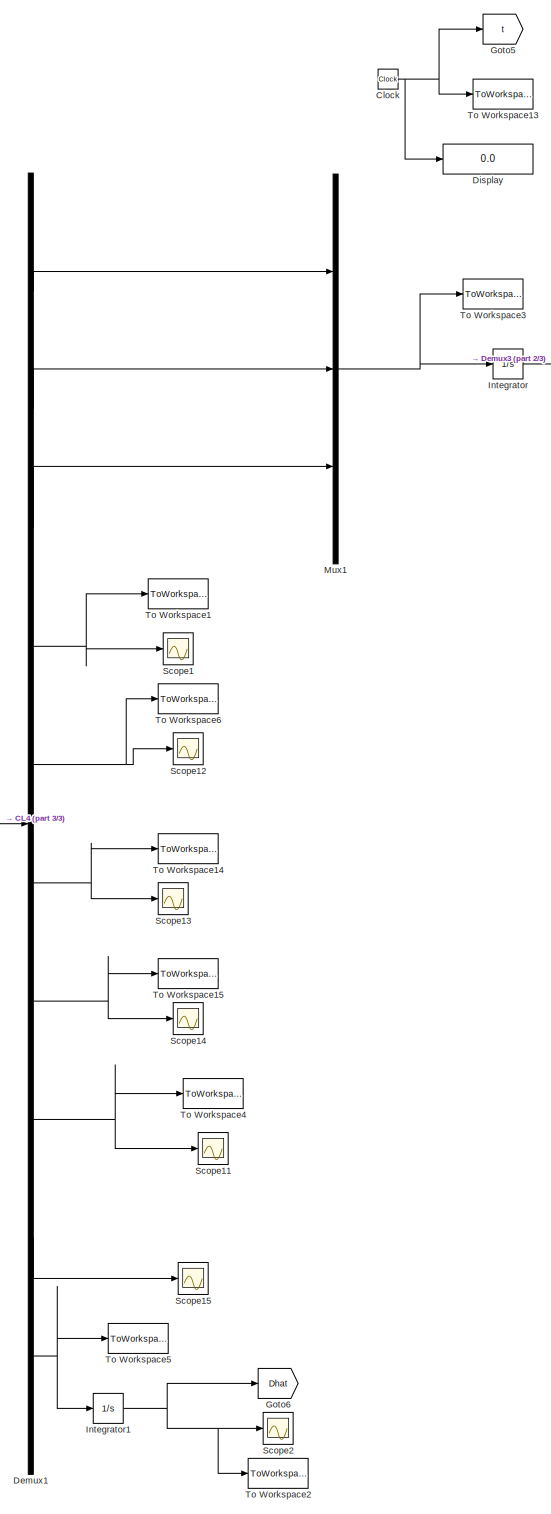
[diagram: root canvas - part 1/3, center side, full height]
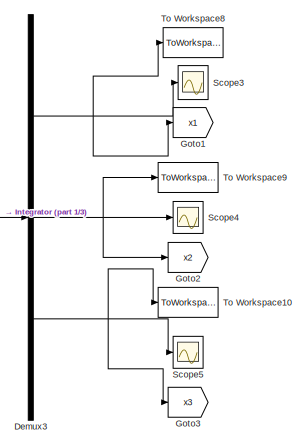
[diagram: root canvas - part 2/3, top right region]
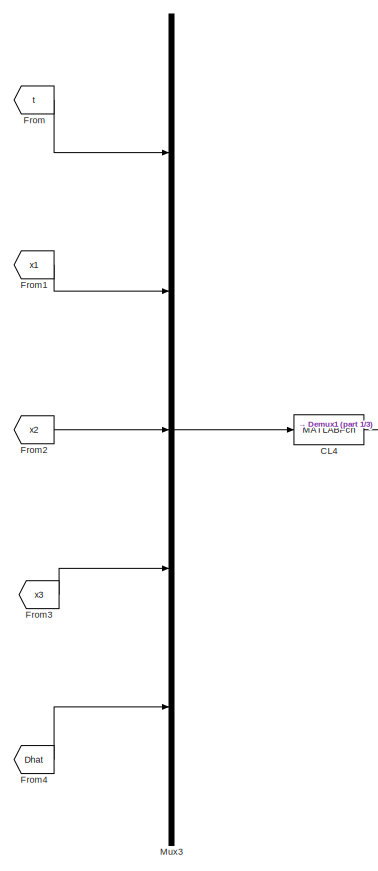
[diagram: root canvas - part 3/3, middle left region]
MODEL slx_58ae2312b29e
KIND model
CONFIG AbsTol = auto
CONFIG EnableMultiTasking = off
CONFIG FixedStep = auto
CONFIG MaxStep = auto
CONFIG MinStep = auto
CONFIG RelTol = 1e-3
CONFIG SampleTimeConstraint = Unconstrained
CONFIG SolverName = VariableStepAuto
CONFIG StartTime = 0.0
CONFIG StopTime = 90000
BLOCK [MATLABFcn] CL4
  MATLABFcn = control_law4adaptive
  OutputDimensions = 10
  Ports = [1, 1]
BLOCK [Clock] Clock
BLOCK [Demux] Demux1
  Outputs = 10
  Ports = [1, 10]
BLOCK [Demux] Demux3
  Outputs = 3
  Ports = [1, 3]
BLOCK [Display] Display
  Decimation = 1
  Ports = [1]
BLOCK [From] From
  GotoTag = t
  TagVisibility = global
BLOCK [From] From1
  GotoTag = x1
  TagVisibility = global
BLOCK [From] From2
  GotoTag = x2
  TagVisibility = global
BLOCK [From] From3
  GotoTag = x3
  TagVisibility = global
BLOCK [From] From4
  GotoTag = Dhat
  TagVisibility = global
BLOCK [Goto] Goto1
  GotoTag = x1
  TagVisibility = global
BLOCK [Goto] Goto2
  GotoTag = x2
  TagVisibility = global
BLOCK [Goto] Goto3
  GotoTag = x3
  TagVisibility = global
BLOCK [Goto] Goto5
  GotoTag = t
  TagVisibility = global
BLOCK [Goto] Goto6
  GotoTag = Dhat
  TagVisibility = global
BLOCK [Integrator] Integrator
  InitialCondition = [150;0;100]
  Ports = [1, 1]
BLOCK [Integrator] Integrator1
  Ports = [1, 1]
BLOCK [Mux] Mux1
  DisplayOption = bar
  Inputs = 3
  Ports = [3, 1]
BLOCK [Mux] Mux3
  DisplayOption = bar
  Inputs = 5
  Ports = [5, 1]
BLOCK [Scope] Scope1
  Floating = off
  NumInputPorts = 1
  Ports = [1]
  ScopeSpecificationString = Simulink.scopes.TimeScopeBlockCfg('CurrentConfiguration', extmgr.ConfigurationSet(extmgr.Configuration('Core','General UI',true),extmgr.Configuration('Core','Source UI',true),extmgr.Configuration('Sources','WiredSimulink',true,'DataLoggingVariableName','ScopeData1','DataLoggingSaveFormat','StructureWithTime','DataLoggingLimitDataPoints',true,'DataLoggingDecimation','1','DataLoggingDecimateData',tr...<+1756ch>
BLOCK [Scope] Scope11
  Floating = off
  NumInputPorts = 1
  Ports = [1]
  ScopeSpecificationString = Simulink.scopes.TimeScopeBlockCfg('CurrentConfiguration', extmgr.ConfigurationSet(extmgr.Configuration('Core','General UI',true),extmgr.Configuration('Core','Source UI',true),extmgr.Configuration('Sources','WiredSimulink',true,'DataLoggingVariableName','ScopeData1','DataLoggingSaveFormat','StructureWithTime','DataLoggingDecimation','1','DataLoggingDecimateData',true),extmgr.Configuration('Visuals'...<+1706ch>
BLOCK [Scope] Scope12
  Floating = off
  NumInputPorts = 1
  Ports = [1]
  ScopeSpecificationString = Simulink.scopes.TimeScopeBlockCfg('CurrentConfiguration', extmgr.ConfigurationSet(extmgr.Configuration('Core','General UI',true),extmgr.Configuration('Core','Source UI',true),extmgr.Configuration('Sources','WiredSimulink',true,'DataLoggingVariableName','ScopeData2','DataLoggingSaveFormat','StructureWithTime','DataLoggingDecimation','1','DataLoggingDecimateData',true),extmgr.Configuration('Visuals'...<+1702ch>
BLOCK [Scope] Scope13
  Floating = off
  NumInputPorts = 1
  Ports = [1]
  ScopeSpecificationString = Simulink.scopes.TimeScopeBlockCfg('CurrentConfiguration', extmgr.ConfigurationSet(extmgr.Configuration('Core','General UI',true),extmgr.Configuration('Core','Source UI',true),extmgr.Configuration('Sources','WiredSimulink',true,'DataLoggingVariableName','ScopeData3','DataLoggingSaveFormat','StructureWithTime','DataLoggingDecimation','1','DataLoggingDecimateData',true),extmgr.Configuration('Visuals'...<+1686ch>
BLOCK [Scope] Scope14
  Floating = off
  NumInputPorts = 1
  Ports = [1]
  ScopeSpecificationString = Simulink.scopes.TimeScopeBlockCfg('CurrentConfiguration', extmgr.ConfigurationSet(extmgr.Configuration('Core','General UI',true),extmgr.Configuration('Core','Source UI',true),extmgr.Configuration('Sources','WiredSimulink',true,'DataLoggingVariableName','ScopeData4','DataLoggingSaveFormat','StructureWithTime','DataLoggingDecimation','1','DataLoggingDecimateData',true),extmgr.Configuration('Visuals'...<+1704ch>
BLOCK [Scope] Scope15
  Floating = off
  NumInputPorts = 1
  Ports = [1]
  ScopeSpecificationString = Simulink.scopes.TimeScopeBlockCfg('CurrentConfiguration', extmgr.ConfigurationSet(extmgr.Configuration('Core','General UI',true),extmgr.Configuration('Core','Source UI',true),extmgr.Configuration('Sources','WiredSimulink',true,'DataLoggingVariableName','ScopeData5','DataLoggingSaveFormat','StructureWithTime','DataLoggingDecimation','1','DataLoggingDecimateData',true),extmgr.Configuration('Visuals'...<+1702ch>
BLOCK [Scope] Scope2
  Floating = off
  NumInputPorts = 1
  Ports = [1]
  ScopeSpecificationString = Simulink.scopes.TimeScopeBlockCfg('CurrentConfiguration', extmgr.ConfigurationSet(extmgr.Configuration('Core','General UI',true),extmgr.Configuration('Core','Source UI',true),extmgr.Configuration('Sources','WiredSimulink',true,'DataLoggingVariableName','ScopeData1','DataLoggingSaveFormat','StructureWithTime','DataLoggingDecimation','1','DataLoggingDecimateData',true),extmgr.Configuration('Visuals'...<+1702ch>
BLOCK [Scope] Scope3
  Floating = off
  NumInputPorts = 1
  Ports = [1]
  ScopeSpecificationString = Simulink.scopes.TimeScopeBlockCfg('CurrentConfiguration', extmgr.ConfigurationSet(extmgr.Configuration('Core','General UI',true),extmgr.Configuration('Core','Source UI',true),extmgr.Configuration('Sources','WiredSimulink',true,'DataLoggingVariableName','ScopeData2','DataLoggingSaveFormat','StructureWithTime','DataLoggingDecimation','1','DataLoggingDecimateData',true),extmgr.Configuration('Visuals'...<+1707ch>
BLOCK [Scope] Scope4
  Floating = off
  NumInputPorts = 1
  Ports = [1]
  ScopeSpecificationString = Simulink.scopes.TimeScopeBlockCfg('CurrentConfiguration', extmgr.ConfigurationSet(extmgr.Configuration('Core','General UI',true),extmgr.Configuration('Core','Source UI',true),extmgr.Configuration('Sources','WiredSimulink',true,'DataLoggingVariableName','ScopeData3','DataLoggingSaveFormat','StructureWithTime','DataLoggingDecimation','1','DataLoggingDecimateData',true),extmgr.Configuration('Visuals'...<+1647ch>
BLOCK [Scope] Scope5
  Floating = off
  NumInputPorts = 1
  Ports = [1]
  ScopeSpecificationString = Simulink.scopes.TimeScopeBlockCfg('CurrentConfiguration', extmgr.ConfigurationSet(extmgr.Configuration('Core','General UI',true),extmgr.Configuration('Core','Source UI',true),extmgr.Configuration('Sources','WiredSimulink',true,'DataLoggingSaveFormat','StructureWithTime','DataLoggingDecimation','1','DataLoggingDecimateData',true),extmgr.Configuration('Visuals','Time Domain',true,'SerializedDisplays...<+1633ch>
BLOCK [ToWorkspace] To Workspace1
  MaxDataPoints = inf
  Ports = [1]
  SampleTime = 10
  Save2DSignal = 2-D array (concatenate along first dimension)
  VariableName = u
BLOCK [ToWorkspace] To Workspace10
  MaxDataPoints = inf
  Ports = [1]
  SampleTime = 10
  Save2DSignal = 2-D array (concatenate along first dimension)
  VariableName = x3
BLOCK [ToWorkspace] To Workspace13
  MaxDataPoints = inf
  Ports = [1]
  SampleTime = 10
  Save2DSignal = 2-D array (concatenate along first dimension)
  VariableName = t
BLOCK [ToWorkspace] To Workspace14
  MaxDataPoints = inf
  Ports = [1]
  SampleTime = 10
  Save2DSignal = 2-D array (concatenate along first dimension)
  VariableName = x2des
BLOCK [ToWorkspace] To Workspace15
  MaxDataPoints = inf
  Ports = [1]
  SampleTime = 10
  Save2DSignal = 2-D array (concatenate along first dimension)
  VariableName = x3des
BLOCK [ToWorkspace] To Workspace2
  MaxDataPoints = inf
  Ports = [1]
  SampleTime = 10
  Save2DSignal = 2-D array (concatenate along first dimension)
  VariableName = Dhat
BLOCK [ToWorkspace] To Workspace3
  MaxDataPoints = inf
  Ports = [1]
  SampleTime = -1
  Save2DSignal = 2-D array (concatenate along first dimension)
  VariableName = out
BLOCK [ToWorkspace] To Workspace4
  MaxDataPoints = inf
  Ports = [1]
  SampleTime = 10
  Save2DSignal = 2-D array (concatenate along first dimension)
  VariableName = D
BLOCK [ToWorkspace] To Workspace5
  MaxDataPoints = inf
  Ports = [1]
  SampleTime = 10
  Save2DSignal = 2-D array (concatenate along first dimension)
  VariableName = Dhat_dot
BLOCK [ToWorkspace] To Workspace6
  MaxDataPoints = inf
  Ports = [1]
  SampleTime = 10
  Save2DSignal = 2-D array (concatenate along first dimension)
  VariableName = x1des
BLOCK [ToWorkspace] To Workspace8
  MaxDataPoints = inf
  Ports = [1]
  SampleTime = 10
  Save2DSignal = 2-D array (concatenate along first dimension)
  VariableName = x1
BLOCK [ToWorkspace] To Workspace9
  MaxDataPoints = inf
  Ports = [1]
  SampleTime = 10
  Save2DSignal = 2-D array (concatenate along first dimension)
  VariableName = x2
LINE CL4:1 -> Demux1:1
NET Clock:1 -> Display:1, Goto5:1, To Workspace13:1
LINE Demux1:1 -> Mux1:1
NET Demux1:10 -> Integrator1:1, To Workspace5:1
LINE Demux1:2 -> Mux1:2
LINE Demux1:3 -> Mux1:3
NET Demux1:4 -> Scope1:1, To Workspace1:1
NET Demux1:5 -> Scope12:1, To Workspace6:1
NET Demux1:6 -> Scope13:1, To Workspace14:1
NET Demux1:7 -> Scope14:1, To Workspace15:1
NET Demux1:8 -> Scope11:1, To Workspace4:1
LINE Demux1:9 -> Scope15:1
NET Demux3:1 -> Goto1:1, Scope3:1, To Workspace8:1
NET Demux3:2 -> Goto2:1, Scope4:1, To Workspace9:1
NET Demux3:3 -> Goto3:1, Scope5:1, To Workspace10:1
LINE From1:1 -> Mux3:2
LINE From2:1 -> Mux3:3
LINE From3:1 -> Mux3:4
LINE From4:1 -> Mux3:5
LINE From:1 -> Mux3:1
NET Integrator1:1 -> Goto6:1, Scope2:1, To Workspace2:1
LINE Integrator:1 -> Demux3:1
NET Mux1:1 -> Integrator:1, To Workspace3:1
LINE Mux3:1 -> CL4:1
note: NET lines group one-source signal fan-out (src -> all destinations, sorted); 1:1 wires keep LINE
